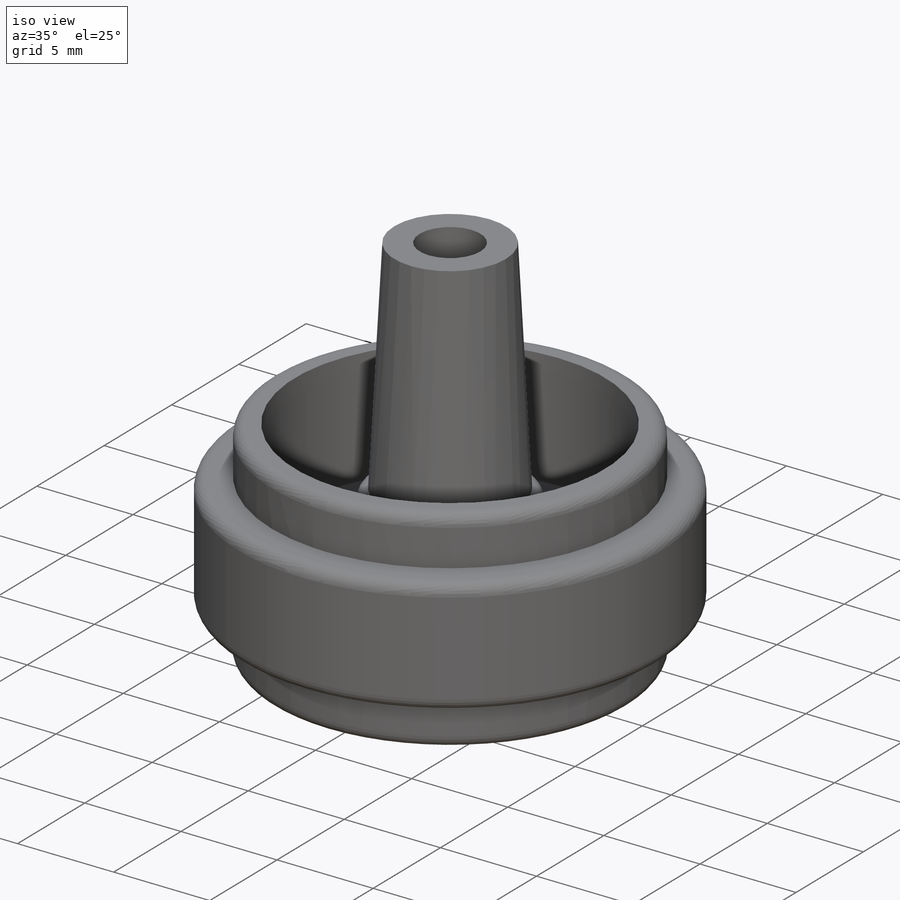
[diagram: iso view]
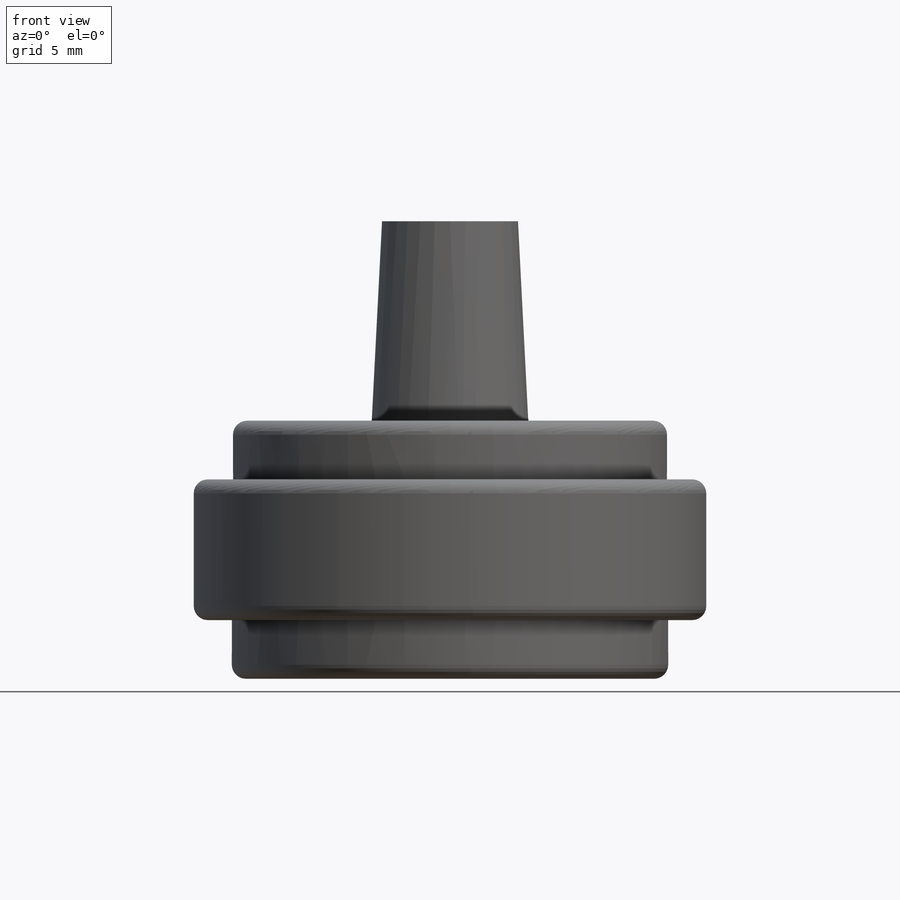
[diagram: front view]
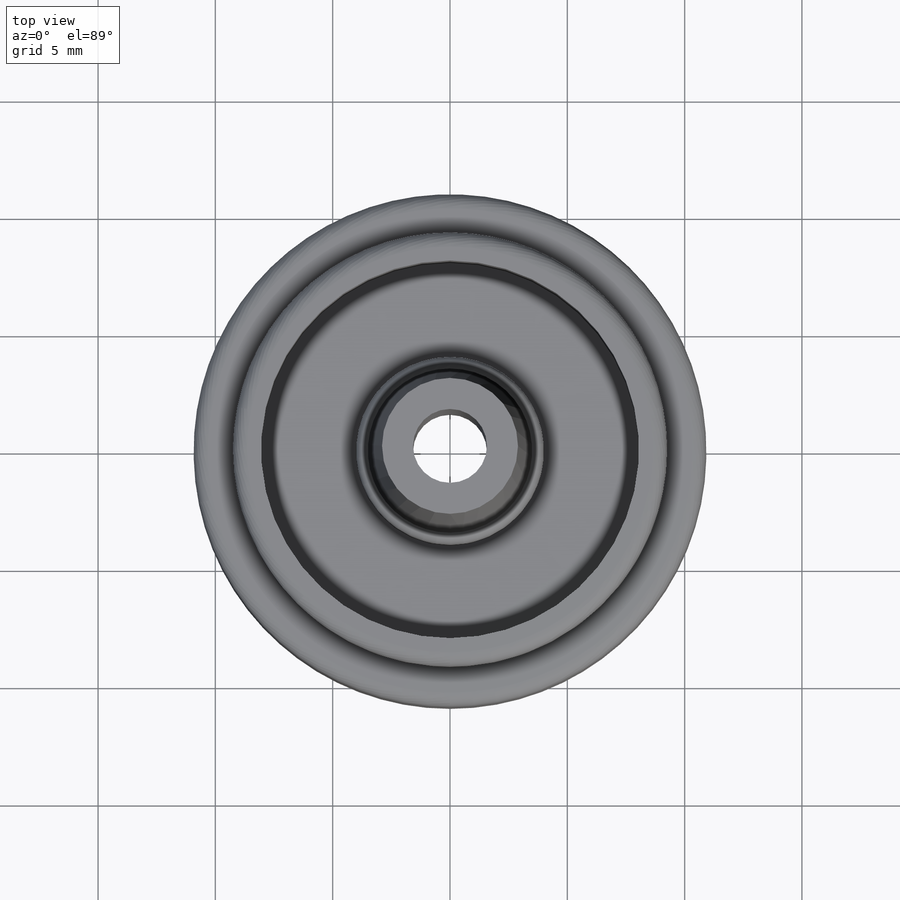
[diagram: top view]
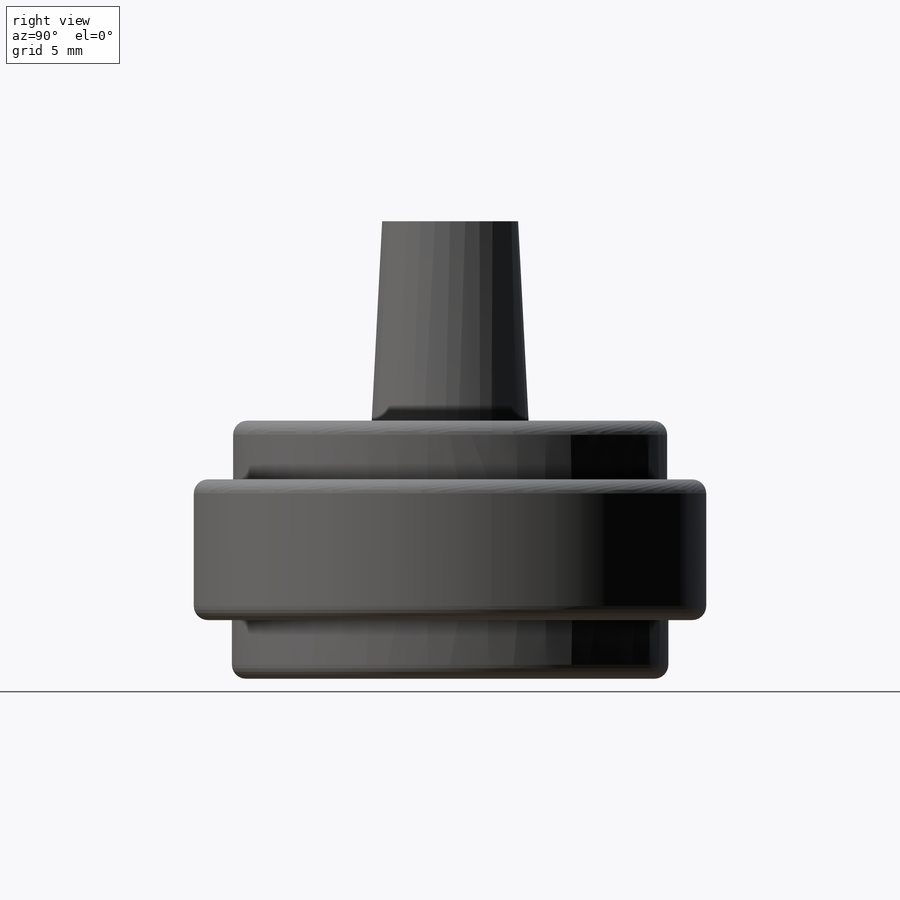
[diagram: right view]
SOLIDWORKS PART (.sldprt)
format: sldprt  version: not decoded by parser v0  size: 281,600 bytes
history: native  units: mm
features: sketch x9, extrude x5, cut_extrude x4, material x1, fillet x1 (+11 scaffold rows collapsed)
feature tree (31):
  scaffold x11  (default folders/planes/origin — collapsed)
  material  "Material <not specified>"
  sketch  "Sketch1"  dims[D1=18.6mm]
  extrude  "Boss-Extrude1"  Depth=2.5mm
  sketch  "Sketch2"  dims[D1=21.85mm]
  extrude  "Boss-Extrude2"  Depth=6mm
  sketch  "Sketch3"  dims[D1=18.5mm]
  extrude  "Boss-Extrude3"  Depth=2.5mm
  sketch  "Sketch4"  dims[D1=16.05mm D2=8.5mm]
  cut_extrude  "Cut-Extrude2"  Depth=3.5mm
  sketch  "Sketch5"  dims[D1=1.1mm]
  cut_extrude  "Cut-Extrude3"  Depth=6.5mm
  sketch  "Sketch6"  dims[D1=1.2mm]
  cut_extrude  "Cut-Extrude4"  Depth=6mm
  sketch  "Sketch7"  dims[D1=8.0mm]
  extrude  "Boss-Extrude4"  Depth=3mm
  sketch  "Sketch8"  dims[D1=7.0mm]
  extrude  "Boss-Extrude5"  Depth=11.5mm
  sketch  "Sketch9"  dims[D1=3.15mm]
  cut_extrude  "Cut-Extrude5"  [1 undecoded]
  fillet  "Fillet1"  Radius=0.6mm
decode coverage: 18 of 19 modeling features carry decoded parameters
note: 1 parameter value undecoded
note: suppression state not decoded; provenance and decode notes live in map.json
